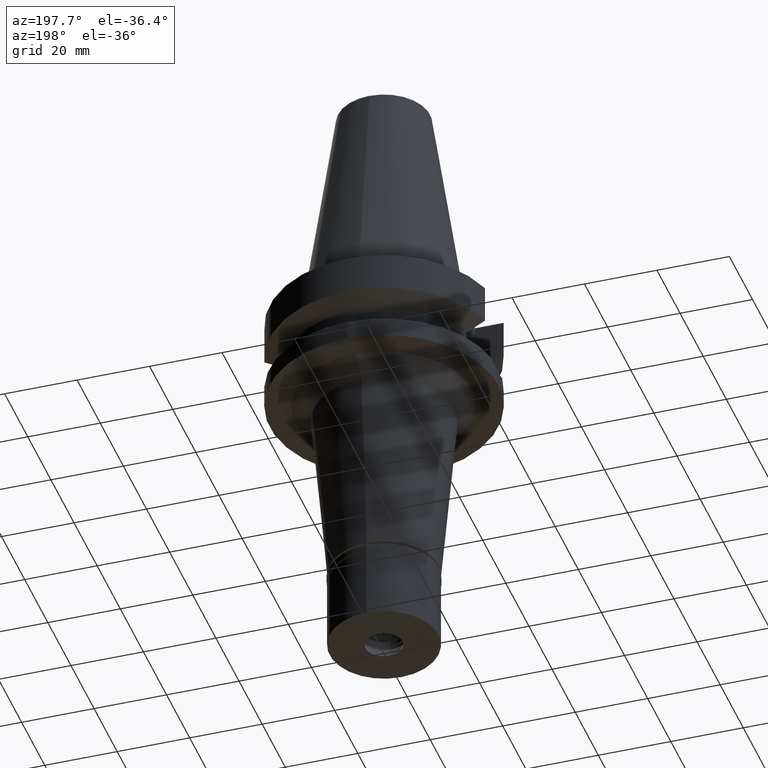
[diagram: clean part render]
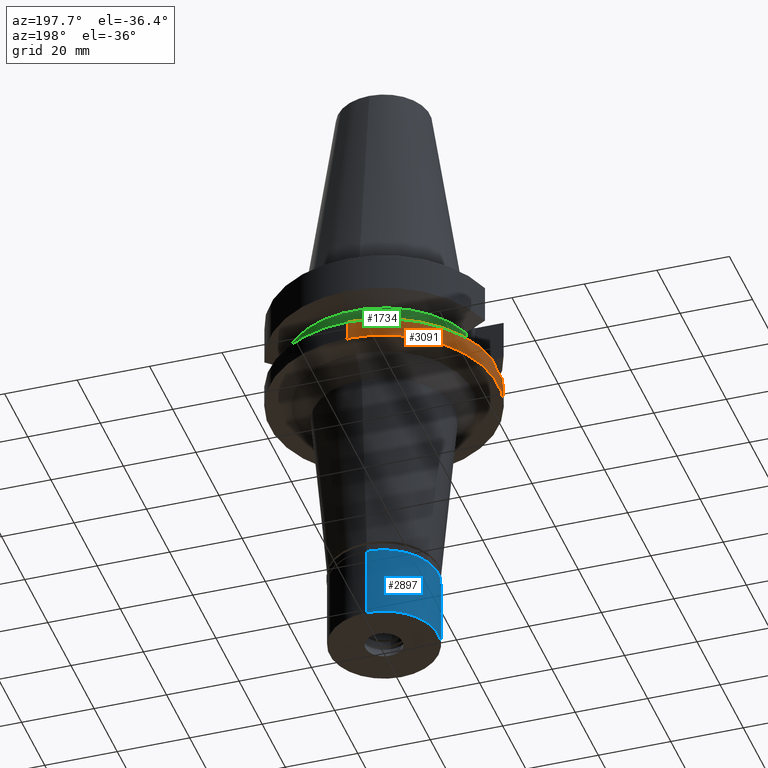
[diagram: same view with three faces highlighted in distinct colors, each labeled with its STEP entity id]
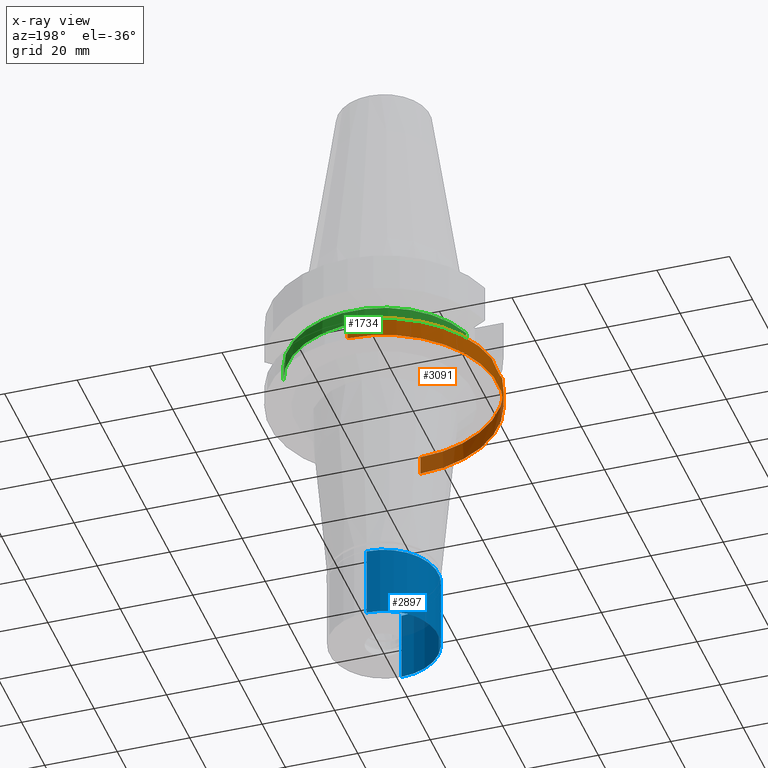
[diagram: x-ray of the same camera — body ghosted, the three highlighted faces saturated]
A machine part, auxiliary view with three faces highlighted in distinct colors.
The next image is the same camera in x-ray (body ghosted, the three faces saturated) — at least one of them is partly hidden behind the body in this view.
Their STEP definitions:

[orange] entity #3091 — the highlighted cylindrical surface (partial cylindrical patch) has radius 31.5 mm, axis along (0, 0, -1).
#4 = CARTESIAN_POINT ( 'NONE',  ( -31.27846961443781737, 3.743983546130084772, -22.08754853579502964 ) ) ;
#18 = CARTESIAN_POINT ( 'NONE',  ( -31.41215830074744275, 2.351096289897533165, -22.64905788739061521 ) ) ;
#37 = CARTESIAN_POINT ( 'NONE',  ( -31.43626029286639678, -2.006672135009983204, -22.74702249194593051 ) ) ;
#91 = EDGE_CURVE ( 'NONE', #1546, #259, #2782, .T. ) ;
#157 = DIRECTION ( 'NONE',  ( 0.0000000000000000000, 0.0000000000000000000, -1.000000000000000000 ) ) ;
#159 = VECTOR ( 'NONE', #2718, 1000.000000000000000 ) ;
#162 = DIRECTION ( 'NONE',  ( 0.0000000000000000000, 1.099151708819000049E-13, -1.000000000000000000 ) ) ;
#166 = ORIENTED_EDGE ( 'NONE', *, *, #818, .T. ) ;
#198 = CARTESIAN_POINT ( 'NONE',  ( 0.0000000000000000000, -31.50000000000000000, -21.63449434733000132 ) ) ;
#207 = CARTESIAN_POINT ( 'NONE',  ( -31.37907245650107413, 2.757363126055049740, -22.51361630134539382 ) ) ;
#235 = CARTESIAN_POINT ( 'NONE',  ( -31.47056816806594171, -1.371798205037736418, -22.88470967410015078 ) ) ;
#251 = CARTESIAN_POINT ( 'NONE',  ( -31.33719342388233997, 3.200318897617061342, -22.33920407941110753 ) ) ;
#259 = VERTEX_POINT ( 'NONE', #307 ) ;
#307 = CARTESIAN_POINT ( 'NONE',  ( -31.17899877608999759, -4.485536235554000051, -21.63449434733000132 ) ) ;
#379 = DIRECTION ( 'NONE',  ( 0.0000000000000000000, 0.0000000000000000000, -1.000000000000000000 ) ) ;
#390 = DIRECTION ( 'NONE',  ( 0.0000000000000000000, 0.0000000000000000000, -1.000000000000000000 ) ) ;
#405 = EDGE_CURVE ( 'NONE', #915, #259, #2339, .T. ) ;
#409 = EDGE_LOOP ( 'NONE', ( #676, #1154, #166, #2244, #1065, #2873 ) ) ;
#432 = FACE_OUTER_BOUND ( 'NONE', #409, .T. ) ;
#466 = LINE ( 'NONE', #198, #159 ) ;
#502 = CARTESIAN_POINT ( 'NONE',  ( -31.17899877608999759, -4.485536235554000051, -21.63449434733000132 ) ) ;
#627 = DIRECTION ( 'NONE',  ( 0.0000000000000000000, 0.0000000000000000000, 1.000000000000000000 ) ) ;
#675 = VERTEX_POINT ( 'NONE', #1705 ) ;
#676 = ORIENTED_EDGE ( 'NONE', *, *, #905, .T. ) ;
#714 = CARTESIAN_POINT ( 'NONE',  ( -31.41073716363128199, 2.369955556982202172, -22.64326362460532494 ) ) ;
#805 = AXIS2_PLACEMENT_3D ( 'NONE', #1620, #627, #2137 ) ;
#818 = EDGE_CURVE ( 'NONE', #964, #675, #2170, .T. ) ;
#894 = CARTESIAN_POINT ( 'NONE',  ( 0.0000000000000000000, 2.125803146300000032E-14, 73.58499999999999375 ) ) ;
#905 = EDGE_CURVE ( 'NONE', #1546, #1645, #1111, .T. ) ;
#915 = VERTEX_POINT ( 'NONE', #2360 ) ;
#964 = VERTEX_POINT ( 'NONE', #2950 ) ;
#1006 = CARTESIAN_POINT ( 'NONE',  ( -31.41604485789486390, -2.298564670171074908, -22.66490387661687578 ) ) ;
#1065 = ORIENTED_EDGE ( 'NONE', *, *, #405, .T. ) ;
#1106 = CARTESIAN_POINT ( 'NONE',  ( 0.0000000000000000000, 0.0000000000000000000, -21.63449434733000132 ) ) ;
#1111 = CIRCLE ( 'NONE', #2589, 31.50000000000001421 ) ;
#1154 = ORIENTED_EDGE ( 'NONE', *, *, #2577, .T. ) ;
#1445 = CARTESIAN_POINT ( 'NONE',  ( -31.42474741543221128, -2.177058571073353210, -22.70031563427412280 ) ) ;
#1457 = CARTESIAN_POINT ( 'NONE',  ( -31.40749760860635931, 2.412424580010193331, -22.63005222544150286 ) ) ;
#1473 = CARTESIAN_POINT ( 'NONE',  ( -31.39044521733794824, 2.626578571190216316, -22.56039104643951276 ) ) ;
#1546 = VERTEX_POINT ( 'NONE', #2811 ) ;
#1603 = LINE ( 'NONE', #2572, #2689 ) ;
#1620 = CARTESIAN_POINT ( 'NONE',  ( 0.0000000000000000000, 2.125803146300000032E-14, -27.00000000000000000 ) ) ;
#1638 = DIRECTION ( 'NONE',  ( -0.9898094849552905306, 0.1423979757318985240, 0.0000000000000000000 ) ) ;
#1645 = VERTEX_POINT ( 'NONE', #2237 ) ;
#1657 = DIRECTION ( 'NONE',  ( 0.0000000000000000000, -1.000000000000000000, 0.0000000000000000000 ) ) ;
#1705 = CARTESIAN_POINT ( 'NONE',  ( 0.0000000000000000000, -31.50000000000000000, -27.00000000000000000 ) ) ;
#1927 = CARTESIAN_POINT ( 'NONE',  ( -31.41955969787372283, -2.249977568489423430, -22.67921356346757733 ) ) ;
#1941 = CARTESIAN_POINT ( 'NONE',  ( -31.23226293288975697, 4.115296649378654692, -21.88293843200666799 ) ) ;
#1955 = CARTESIAN_POINT ( 'NONE',  ( -31.47164681449472212, 1.548077469545440676, -22.89150997833752044 ) ) ;
#1992 = CARTESIAN_POINT ( 'NONE',  ( -31.44511396460612929, -1.860301245813810622, -22.78273863314811720 ) ) ;
#2126 = CARTESIAN_POINT ( 'NONE',  ( 0.0000000000000000000, 0.0000000000000000000, -21.63449434733000132 ) ) ;
#2131 = DIRECTION ( 'NONE',  ( 0.0000000000000000000, -1.000000000000000000, 0.0000000000000000000 ) ) ;
#2137 = DIRECTION ( 'NONE',  ( 0.0000000000000000000, 1.000000000000000000, 0.0000000000000000000 ) ) ;
#2170 = CIRCLE ( 'NONE', #805, 31.50000000000000000 ) ;
#2212 = CARTESIAN_POINT ( 'NONE',  ( -31.36242476482017238, -3.016548684969622141, -22.44626900665777569 ) ) ;
#2237 = CARTESIAN_POINT ( 'NONE',  ( 0.0000000000000000000, 31.50000000000000000, -21.63449434733000132 ) ) ;
#2244 = ORIENTED_EDGE ( 'NONE', *, *, #2770, .F. ) ;
#2339 = CIRCLE ( 'NONE', #2888, 31.50000000000000000 ) ;
#2357 = AXIS2_PLACEMENT_3D ( 'NONE', #894, #157, #2131 ) ;
#2360 = CARTESIAN_POINT ( 'NONE',  ( 0.0000000000000000000, -31.50000000000000000, -21.63449434733000132 ) ) ;
#2406 = CARTESIAN_POINT ( 'NONE',  ( -31.46146862952803502, -1.567358629207376453, -22.84847756273314445 ) ) ;
#2419 = CARTESIAN_POINT ( 'NONE',  ( -31.50032380699093437, 0.7535289836077879722, -23.00127312585621198 ) ) ;
#2437 = CARTESIAN_POINT ( 'NONE',  ( -31.35500365821759061, 3.021264144778362137, -22.41390211746503525 ) ) ;
#2572 = CARTESIAN_POINT ( 'NONE',  ( 0.0000000000000000000, 31.50000000000000000, -21.63449434733000132 ) ) ;
#2577 = EDGE_CURVE ( 'NONE', #1645, #964, #1603, .T. ) ;
#2584 = CYLINDRICAL_SURFACE ( 'NONE', #2357, 31.50000000000000000 ) ;
#2589 = AXIS2_PLACEMENT_3D ( 'NONE', #1106, #390, #1638 ) ;
#2661 = CARTESIAN_POINT ( 'NONE',  ( -31.49983371806498056, -0.3969849275423127932, -22.99934650678998693 ) ) ;
#2689 = VECTOR ( 'NONE', #162, 1000.000000000000000 ) ;
#2691 = CARTESIAN_POINT ( 'NONE',  ( -31.28458591552585943, -3.751599172477773969, -22.12699252595170307 ) ) ;
#2718 = DIRECTION ( 'NONE',  ( 0.0000000000000000000, -1.105773104655000034E-13, -1.000000000000000000 ) ) ;
#2770 = EDGE_CURVE ( 'NONE', #915, #675, #466, .T. ) ;
#2782 = B_SPLINE_CURVE_WITH_KNOTS ( 'NONE', 3,
 ( #2957, #1941, #4, #251, #2437, #207, #1473, #3132, #1457, #714, #18, #1955, #2419, #2661, #3144, #235, #2406, #1992, #37, #1445, #1927, #1006, #2893, #2212, #2691, #502 ),
 .UNSPECIFIED., .F., .F.,
 ( 4, 2, 2, 1, 1, 2, 2, 2, 2, 2, 1, 1, 2, 2, 4 ),
 ( 0.0000000000000000000, 0.1250000000000029143, 0.1875000000000045519, 0.2187500000000049682, 0.2343750000000051903, 0.2421875000000053568, 0.2500000000000055511, 0.5000000000000049960, 0.6250000000000046629, 0.6875000000000045519, 0.7187500000000043299, 0.7343750000000041078, 0.7421875000000042188, 0.7500000000000042188, 1.000000000000000000 ),
 .UNSPECIFIED. ) ;
#2811 = CARTESIAN_POINT ( 'NONE',  ( -31.17899877608999759, 4.485536235554000051, -21.63449434733000132 ) ) ;
#2873 = ORIENTED_EDGE ( 'NONE', *, *, #91, .F. ) ;
#2888 = AXIS2_PLACEMENT_3D ( 'NONE', #2126, #379, #1657 ) ;
#2893 = CARTESIAN_POINT ( 'NONE',  ( -31.41408065394639237, -2.325228041220380959, -22.65689912745741452 ) ) ;
#2950 = CARTESIAN_POINT ( 'NONE',  ( 0.0000000000000000000, 31.50000000000000000, -27.00000000000000000 ) ) ;
#2957 = CARTESIAN_POINT ( 'NONE',  ( -31.17899877608999759, 4.485536235554000051, -21.63449434733000132 ) ) ;
#3091 = ADVANCED_FACE ( 'NONE', ( #432 ), #2584, .T. ) ;
#3132 = CARTESIAN_POINT ( 'NONE',  ( -31.40255557128086750, 2.476306052346672448, -22.60989025223918247 ) ) ;
#3144 = CARTESIAN_POINT ( 'NONE',  ( -31.49245606944946729, -0.7860991982188147986, -22.97124303091316833 ) ) ;

[blue] entity #2897 — the highlighted cylindrical surface (partial cylindrical patch) has radius 15 mm, axis along (0, 0, -1).
#81 = CYLINDRICAL_SURFACE ( 'NONE', #1742, 15.00000000000000000 ) ;
#208 = CARTESIAN_POINT ( 'NONE',  ( 0.0000000000000000000, 15.00000000000000000, -2.000000000000000000 ) ) ;
#253 = LINE ( 'NONE', #2663, #860 ) ;
#303 = ORIENTED_EDGE ( 'NONE', *, *, #2145, .F. ) ;
#324 = CARTESIAN_POINT ( 'NONE',  ( 0.0000000000000000000, 15.00000000000000000, -22.00000000000000000 ) ) ;
#517 = VERTEX_POINT ( 'NONE', #208 ) ;
#622 = DIRECTION ( 'NONE',  ( 0.0000000000000000000, 0.0000000000000000000, -1.000000000000000000 ) ) ;
#833 = DIRECTION ( 'NONE',  ( 0.0000000000000000000, -1.000000000000000000, 0.0000000000000000000 ) ) ;
#860 = VECTOR ( 'NONE', #1475, 1000.000000000000000 ) ;
#1083 = CARTESIAN_POINT ( 'NONE',  ( 0.0000000000000000000, 15.00000000000000000, -2.000000000000000000 ) ) ;
#1100 = DIRECTION ( 'NONE',  ( 0.0000000000000000000, -1.000000000000000000, 0.0000000000000000000 ) ) ;
#1172 = EDGE_LOOP ( 'NONE', ( #1553, #303, #3120, #1698 ) ) ;
#1299 = EDGE_CURVE ( 'NONE', #2480, #1602, #2932, .T. ) ;
#1350 = EDGE_CURVE ( 'NONE', #1470, #517, #3038, .T. ) ;
#1364 = EDGE_CURVE ( 'NONE', #517, #2480, #2287, .T. ) ;
#1468 = AXIS2_PLACEMENT_3D ( 'NONE', #2302, #2781, #833 ) ;
#1470 = VERTEX_POINT ( 'NONE', #2511 ) ;
#1475 = DIRECTION ( 'NONE',  ( 0.0000000000000000000, 0.0000000000000000000, -1.000000000000000000 ) ) ;
#1513 = CARTESIAN_POINT ( 'NONE',  ( 0.0000000000000000000, -15.00000000000000000, -22.00000000000000000 ) ) ;
#1553 = ORIENTED_EDGE ( 'NONE', *, *, #1299, .T. ) ;
#1602 = VERTEX_POINT ( 'NONE', #1513 ) ;
#1698 = ORIENTED_EDGE ( 'NONE', *, *, #1364, .T. ) ;
#1718 = VECTOR ( 'NONE', #2052, 1000.000000000000000 ) ;
#1742 = AXIS2_PLACEMENT_3D ( 'NONE', #2054, #622, #1100 ) ;
#1812 = CARTESIAN_POINT ( 'NONE',  ( 0.0000000000000000000, 0.0000000000000000000, -22.00000000000000000 ) ) ;
#2052 = DIRECTION ( 'NONE',  ( 0.0000000000000000000, 0.0000000000000000000, -1.000000000000000000 ) ) ;
#2054 = CARTESIAN_POINT ( 'NONE',  ( 0.0000000000000000000, 0.0000000000000000000, 0.0000000000000000000 ) ) ;
#2145 = EDGE_CURVE ( 'NONE', #1470, #1602, #253, .T. ) ;
#2287 = LINE ( 'NONE', #1083, #1718 ) ;
#2302 = CARTESIAN_POINT ( 'NONE',  ( 0.0000000000000000000, 0.0000000000000000000, -2.000000000000000000 ) ) ;
#2480 = VERTEX_POINT ( 'NONE', #324 ) ;
#2511 = CARTESIAN_POINT ( 'NONE',  ( 0.0000000000000000000, -15.00000000000000000, -2.000000000000000000 ) ) ;
#2518 = DIRECTION ( 'NONE',  ( 0.0000000000000000000, 0.0000000000000000000, 1.000000000000000000 ) ) ;
#2663 = CARTESIAN_POINT ( 'NONE',  ( 0.0000000000000000000, -15.00000000000000000, -2.000000000000000000 ) ) ;
#2781 = DIRECTION ( 'NONE',  ( 0.0000000000000000000, 0.0000000000000000000, -1.000000000000000000 ) ) ;
#2879 = AXIS2_PLACEMENT_3D ( 'NONE', #1812, #2518, #3049 ) ;
#2897 = ADVANCED_FACE ( 'NONE', ( #2981 ), #81, .T. ) ;
#2932 = CIRCLE ( 'NONE', #2879, 15.00000000000000000 ) ;
#2981 = FACE_OUTER_BOUND ( 'NONE', #1172, .T. ) ;
#3038 = CIRCLE ( 'NONE', #1468, 15.00000000000000000 ) ;
#3049 = DIRECTION ( 'NONE',  ( 0.0000000000000000000, 1.000000000000000000, 0.0000000000000000000 ) ) ;
#3120 = ORIENTED_EDGE ( 'NONE', *, *, #1350, .T. ) ;

[green] entity #1734 — the highlighted cylindrical surface (partial cylindrical patch) has radius 26.5 mm, axis along (0, 0, -1).
#15 = CARTESIAN_POINT ( 'NONE',  ( 25.37569567372544910, 7.637836187999782922, -17.49781209657168191 ) ) ;
#141 = CARTESIAN_POINT ( 'NONE',  ( 25.24772266958000344, 8.050000000000000711, -14.94999999999999929 ) ) ;
#177 = CIRCLE ( 'NONE', #696, 26.49999999999998224 ) ;
#197 = EDGE_CURVE ( 'NONE', #3058, #1836, #2262, .T. ) ;
#244 = CARTESIAN_POINT ( 'NONE',  ( 25.34384339545047737, 7.742469616379023201, -17.15619314850085431 ) ) ;
#256 = EDGE_CURVE ( 'NONE', #2609, #1542, #1589, .T. ) ;
#272 = B_SPLINE_CURVE_WITH_KNOTS ( 'NONE', 3,
 ( #1700, #2414, #2951, #532, #15, #1968, #244, #966, #2937, #496, #711, #1952, #762, #1687 ),
 .UNSPECIFIED., .F., .F.,
 ( 4, 2, 2, 1, 1, 2, 2, 4 ),
 ( 0.0000000000000000000, 0.2500000000000011657, 0.3750000000000028311, 0.4375000000000037748, 0.4687500000000027756, 0.4843750000000024425, 0.5000000000000019984, 1.000000000000000000 ),
 .UNSPECIFIED. ) ;
#389 = CARTESIAN_POINT ( 'NONE',  ( -25.53175183775000079, 7.097862220092999941, -18.74774300138999905 ) ) ;
#454 = CARTESIAN_POINT ( 'NONE',  ( -25.27269700110156236, 7.971767412704486411, -16.08147680839861238 ) ) ;
#495 = VECTOR ( 'NONE', #856, 1000.000000000000114 ) ;
#496 = CARTESIAN_POINT ( 'NONE',  ( 25.32546474064105979, 7.802209548897429237, -16.93201787082077203 ) ) ;
#507 = DIRECTION ( 'NONE',  ( 0.0000000000000000000, 0.0000000000000000000, -1.000000000000000000 ) ) ;
#532 = CARTESIAN_POINT ( 'NONE',  ( 25.39161474380841099, 7.584925632688388042, -17.65165132602217213 ) ) ;
#576 = CARTESIAN_POINT ( 'NONE',  ( -25.24772266958000344, 8.050000000000000711, -14.94999999999999929 ) ) ;
#595 = B_SPLINE_CURVE_WITH_KNOTS ( 'NONE', 3,
 ( #2160, #1923, #897, #454, #1619, #2635, #1180, #1148, #2646, #672, #2148, #2875, #2889, #1866 ),
 .UNSPECIFIED., .F., .F.,
 ( 4, 2, 2, 1, 1, 2, 2, 4 ),
 ( 0.0000000000000000000, 0.2500000000000174305, 0.3750000000000253686, 0.4375000000000293099, 0.4687500000000301426, 0.4843750000000306422, 0.5000000000000311973, 1.000000000000000000 ),
 .UNSPECIFIED. ) ;
#616 = ORIENTED_EDGE ( 'NONE', *, *, #197, .F. ) ;
#665 = VECTOR ( 'NONE', #2506, 1000.000000000000114 ) ;
#672 = CARTESIAN_POINT ( 'NONE',  ( -25.31954826170011685, 7.821386849067988756, -16.85495274079643835 ) ) ;
#673 = CARTESIAN_POINT ( 'NONE',  ( 0.0000000000000000000, 0.0000000000000000000, -18.74774300138999905 ) ) ;
#695 = ORIENTED_EDGE ( 'NONE', *, *, #256, .F. ) ;
#696 = AXIS2_PLACEMENT_3D ( 'NONE', #673, #2849, #1606 ) ;
#711 = CARTESIAN_POINT ( 'NONE',  ( 25.32415423298265722, 7.806459850231466824, -16.91522840168126152 ) ) ;
#762 = CARTESIAN_POINT ( 'NONE',  ( 25.24772266958000344, 8.049999999999997158, -15.58981081119148193 ) ) ;
#808 = ORIENTED_EDGE ( 'NONE', *, *, #2740, .F. ) ;
#825 = CARTESIAN_POINT ( 'NONE',  ( 25.24772266958000344, 8.050000000000000711, -14.94999999999999929 ) ) ;
#844 = ORIENTED_EDGE ( 'NONE', *, *, #1991, .T. ) ;
#848 = EDGE_CURVE ( 'NONE', #3087, #2680, #177, .T. ) ;
#856 = DIRECTION ( 'NONE',  ( 2.937383692410144531E-06, -9.212707506279447841E-06, 0.9999999999532489525 ) ) ;
#897 = CARTESIAN_POINT ( 'NONE',  ( -25.25396625246039406, 8.030896711162538892, -15.59378553528506473 ) ) ;
#933 = CARTESIAN_POINT ( 'NONE',  ( 0.0000000000000000000, 1.065333950388000029E-14, -14.45225699861000024 ) ) ;
#966 = CARTESIAN_POINT ( 'NONE',  ( 25.33288843118665312, 7.778112047386424699, -17.02510900864709598 ) ) ;
#1148 = CARTESIAN_POINT ( 'NONE',  ( -25.31206084004277201, 7.845614529401171211, -16.75329855850939254 ) ) ;
#1180 = CARTESIAN_POINT ( 'NONE',  ( -25.30215890781840216, 7.877570599500772097, -16.61088255776608591 ) ) ;
#1542 = VERTEX_POINT ( 'NONE', #576 ) ;
#1589 = LINE ( 'NONE', #2555, #665 ) ;
#1606 = DIRECTION ( 'NONE',  ( 0.9634623335000935818, 0.2678438573619981722, 0.0000000000000000000 ) ) ;
#1619 = CARTESIAN_POINT ( 'NONE',  ( -25.28050147970204620, 7.946982733727889325, -16.24437200640009493 ) ) ;
#1675 = AXIS2_PLACEMENT_3D ( 'NONE', #1949, #507, #1978 ) ;
#1687 = CARTESIAN_POINT ( 'NONE',  ( 25.24772266958000344, 8.050000000000000711, -14.94999999999999929 ) ) ;
#1700 = CARTESIAN_POINT ( 'NONE',  ( 25.53175183775000079, 7.097862220092999941, -18.74774300138999905 ) ) ;
#1734 = ADVANCED_FACE ( 'NONE', ( #2058 ), #2931, .T. ) ;
#1747 = EDGE_LOOP ( 'NONE', ( #844, #616, #808, #3121, #2698, #695 ) ) ;
#1811 = CIRCLE ( 'NONE', #2264, 26.50000000000000711 ) ;
#1836 = VERTEX_POINT ( 'NONE', #1843 ) ;
#1843 = CARTESIAN_POINT ( 'NONE',  ( 25.24772413154000006, 8.049995414761999868, -14.45229203581000021 ) ) ;
#1866 = CARTESIAN_POINT ( 'NONE',  ( -25.53175183775000079, 7.097862220092999941, -18.74774300138999905 ) ) ;
#1923 = CARTESIAN_POINT ( 'NONE',  ( -25.24772266958001055, 8.050000000000018474, -15.27000344021195666 ) ) ;
#1949 = CARTESIAN_POINT ( 'NONE',  ( 0.0000000000000000000, 2.125803146300000032E-14, 73.58499999999999375 ) ) ;
#1952 = CARTESIAN_POINT ( 'NONE',  ( 25.27267991477270215, 7.973333693868347005, -16.24500092433180498 ) ) ;
#1968 = CARTESIAN_POINT ( 'NONE',  ( 25.35408314255054663, 7.708964442631086378, -17.26963666352914117 ) ) ;
#1978 = DIRECTION ( 'NONE',  ( 0.0000000000000000000, -1.000000000000000000, 0.0000000000000000000 ) ) ;
#1991 = EDGE_CURVE ( 'NONE', #2609, #1836, #1811, .T. ) ;
#2058 = FACE_OUTER_BOUND ( 'NONE', #1747, .T. ) ;
#2127 = DIRECTION ( 'NONE',  ( -0.9527442516822307583, 0.3037735849057093818, 0.0000000000000000000 ) ) ;
#2143 = DIRECTION ( 'NONE',  ( 0.0000000000000000000, 0.0000000000000000000, -1.000000000000000000 ) ) ;
#2148 = CARTESIAN_POINT ( 'NONE',  ( -25.32122245610176847, 7.815962707354275452, -16.87706809356136262 ) ) ;
#2160 = CARTESIAN_POINT ( 'NONE',  ( -25.24772266958000344, 8.050000000000000711, -14.94999999999999929 ) ) ;
#2262 = LINE ( 'NONE', #825, #495 ) ;
#2264 = AXIS2_PLACEMENT_3D ( 'NONE', #933, #2143, #2127 ) ;
#2354 = CARTESIAN_POINT ( 'NONE',  ( 25.53175183775000079, 7.097862220092999941, -18.74774300138999905 ) ) ;
#2414 = CARTESIAN_POINT ( 'NONE',  ( 25.48480653792046624, 7.266729367422243513, -18.43213561436577308 ) ) ;
#2506 = DIRECTION ( 'NONE',  ( -1.015531387806011873E-06, -3.185076966331039841E-06, -0.9999999999944119145 ) ) ;
#2555 = CARTESIAN_POINT ( 'NONE',  ( -25.24772216409000336, 8.050001585388001146, -14.45224488484999981 ) ) ;
#2609 = VERTEX_POINT ( 'NONE', #2847 ) ;
#2635 = CARTESIAN_POINT ( 'NONE',  ( -25.29454954118293841, 7.902007388341819372, -16.48871296864355429 ) ) ;
#2641 = EDGE_CURVE ( 'NONE', #1542, #2680, #595, .T. ) ;
#2646 = CARTESIAN_POINT ( 'NONE',  ( -25.31652402624243337, 7.831177078179799800, -16.81429685340960134 ) ) ;
#2680 = VERTEX_POINT ( 'NONE', #389 ) ;
#2698 = ORIENTED_EDGE ( 'NONE', *, *, #2641, .F. ) ;
#2740 = EDGE_CURVE ( 'NONE', #3087, #3058, #272, .T. ) ;
#2847 = CARTESIAN_POINT ( 'NONE',  ( -25.24772216409000336, 8.050001585388001146, -14.45224488484999981 ) ) ;
#2849 = DIRECTION ( 'NONE',  ( 0.0000000000000000000, 0.0000000000000000000, 1.000000000000000000 ) ) ;
#2875 = CARTESIAN_POINT ( 'NONE',  ( -25.36818832151802283, 7.663695285312785543, -17.48840541837618190 ) ) ;
#2889 = CARTESIAN_POINT ( 'NONE',  ( -25.43789037938646302, 7.435491690473143400, -18.11672414062476832 ) ) ;
#2931 = CYLINDRICAL_SURFACE ( 'NONE', #1675, 26.50000000000000000 ) ;
#2937 = CARTESIAN_POINT ( 'NONE',  ( 25.32840589093493122, 7.792665650289850809, -16.96921537928767165 ) ) ;
#2951 = CARTESIAN_POINT ( 'NONE',  ( 25.44390410195637742, 7.408324269918076688, -18.11690676764972352 ) ) ;
#3058 = VERTEX_POINT ( 'NONE', #141 ) ;
#3087 = VERTEX_POINT ( 'NONE', #2354 ) ;
#3121 = ORIENTED_EDGE ( 'NONE', *, *, #848, .T. ) ;